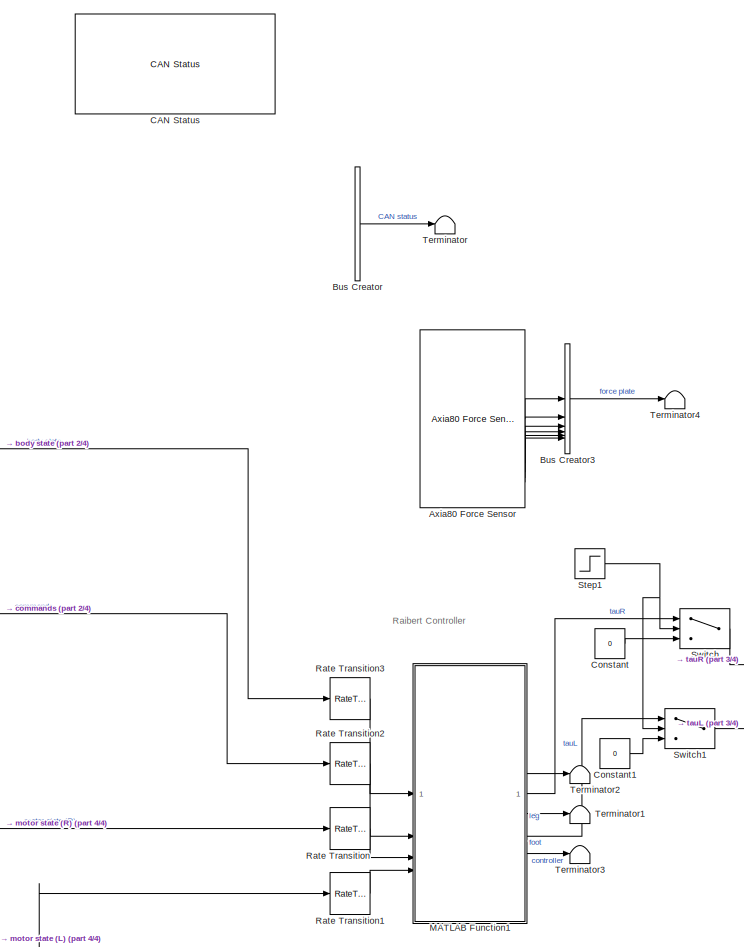
[diagram: root canvas - part 1/4, central region]
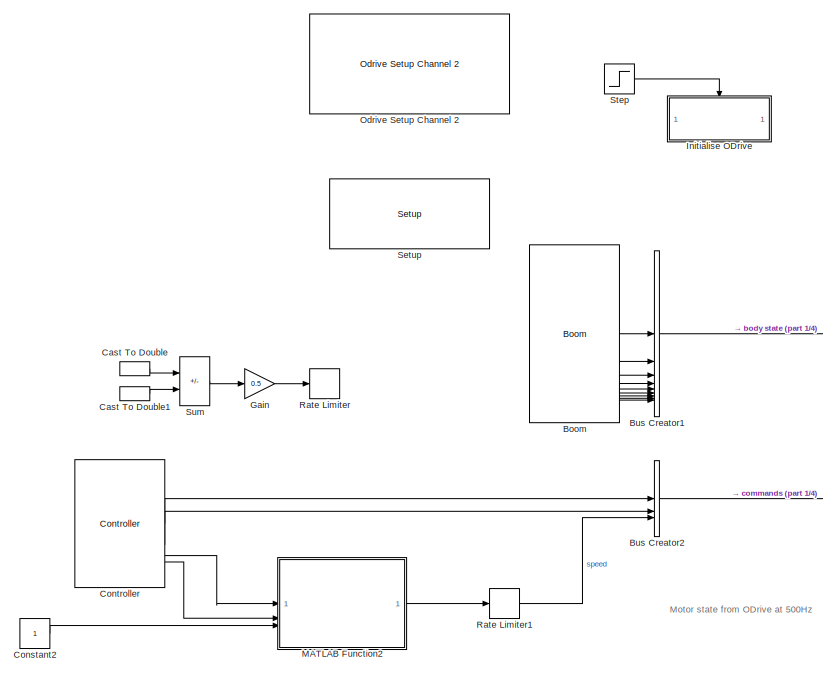
[diagram: root canvas - part 2/4, middle left region]
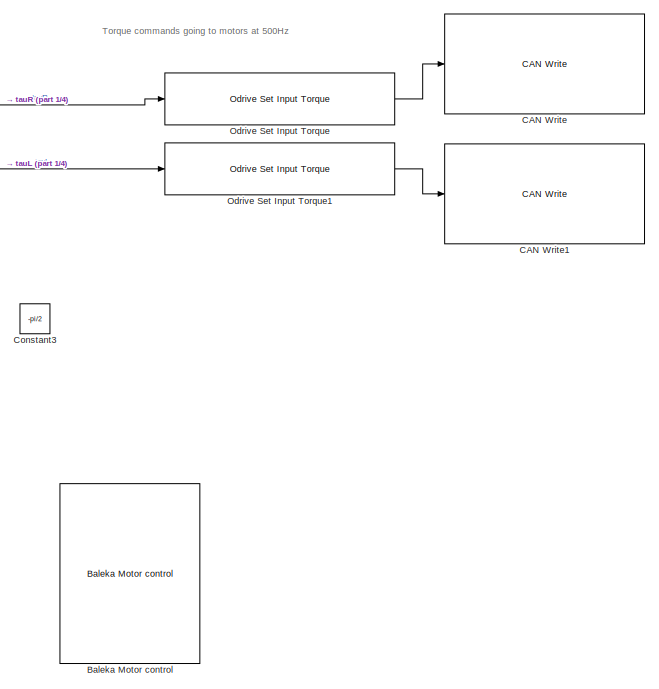
[diagram: root canvas - part 3/4, middle right region]
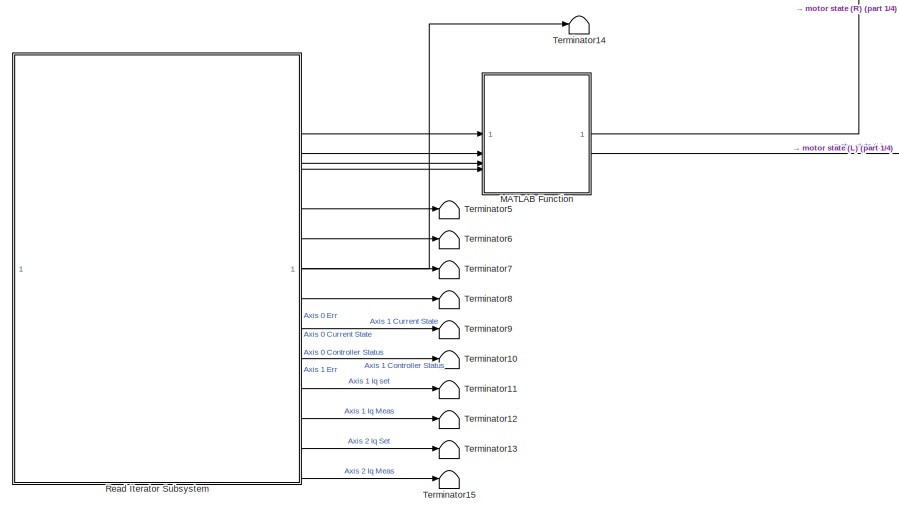
[diagram: root canvas - part 4/4, bottom left region]
MODEL slx_c8e1966b42a7
KIND model
CONFIG AbsTol = auto
CONFIG EnableMultiTasking = on
CONFIG FixedStep = auto
CONFIG InitFcn = run('busObjects.m')
CONFIG MaxStep = auto
CONFIG MinStep = auto
CONFIG RelTol = 1e-3
CONFIG SampleTimeConstraint = Unconstrained
CONFIG SolverName = FixedStepDiscrete
CONFIG StartTime = 0.0
CONFIG StopTime = inf
BLOCK [Reference] Axia80 Force Sensor  REF=aru_toolbox/Axia80 Force Sensor
  Commented = on
  SourceBlock = aru_toolbox/Axia80 Force Sensor
  SourceProductName = ARU Toolbox
  SourceType = Axia80 Force Sensor
BLOCK [Reference] Baleka Motor control  REF=aru_toolbox/Baleka 2.5/Baleka Motor control
  Commented = on
  SourceBlock = aru_toolbox/Baleka 2.5/Baleka Motor control
  SourceProductName = ARU Toolbox
  SourceType = Baleka Motor (AK10-9) Control
BLOCK [Reference] Boom  REF=aru_toolbox/Boom
  SourceBlock = aru_toolbox/Boom
  SourceProductName = ARU Toolbox
  SourceType = Boom Logger
BLOCK [BusCreator] Bus Creator
  Commented = on
  DisplayOption = bar
  InheritFromInputs = off
  Inputs = 7
  NonVirtualBus = on
  OutDataTypeStr = Bus: CAN
BLOCK [BusCreator] Bus Creator1
  DisplayOption = bar
  InheritFromInputs = off
  Inputs = 9
  NonVirtualBus = on
  OutDataTypeStr = Bus: BodyStateO
BLOCK [BusCreator] Bus Creator2
  DisplayOption = bar
  InheritFromInputs = off
  Inputs = 3
  NonVirtualBus = on
  OutDataTypeStr = Bus: Command
BLOCK [BusCreator] Bus Creator3
  Commented = on
  DisplayOption = bar
  InheritFromInputs = off
  Inputs = 6
  NonVirtualBus = on
  OutDataTypeStr = Bus: ForceData
BLOCK [Reference] CAN Status  REF=speedgoatlib_IO691/Legacy/CAN Status
  SourceBlock = speedgoatlib_IO691/Legacy/CAN Status
  SourceProductName = IO691
  SourceType = status_IO691
  UserDataPersistent = on
BLOCK [Reference] CAN Write  REF=speedgoatlib_IO691/Legacy/CAN Write
  SourceBlock = speedgoatlib_IO691/Legacy/CAN Write
  SourceProductName = IO691
  SourceType = write_IO691
BLOCK [Reference] CAN Write1  REF=speedgoatlib_IO691/Legacy/CAN Write
  SourceBlock = speedgoatlib_IO691/Legacy/CAN Write
  SourceProductName = IO691
  SourceType = write_IO691
BLOCK [DataTypeConversion] Cast To Double
  OutDataTypeStr = double
  RndMeth = Floor
  SaturateOnIntegerOverflow = off
BLOCK [DataTypeConversion] Cast To Double1
  OutDataTypeStr = double
  RndMeth = Floor
  SaturateOnIntegerOverflow = off
BLOCK [Constant] Constant
  Value = 0
BLOCK [Constant] Constant1
  Value = 0
BLOCK [Constant] Constant2
BLOCK [Constant] Constant3
  Value = -pi/2
BLOCK [Reference] Controller  REF=aru_toolbox/Controller
  SourceBlock = aru_toolbox/Controller
  SourceProductName = ARU Toolbox
BLOCK [Gain] Gain
  Gain = 0.5
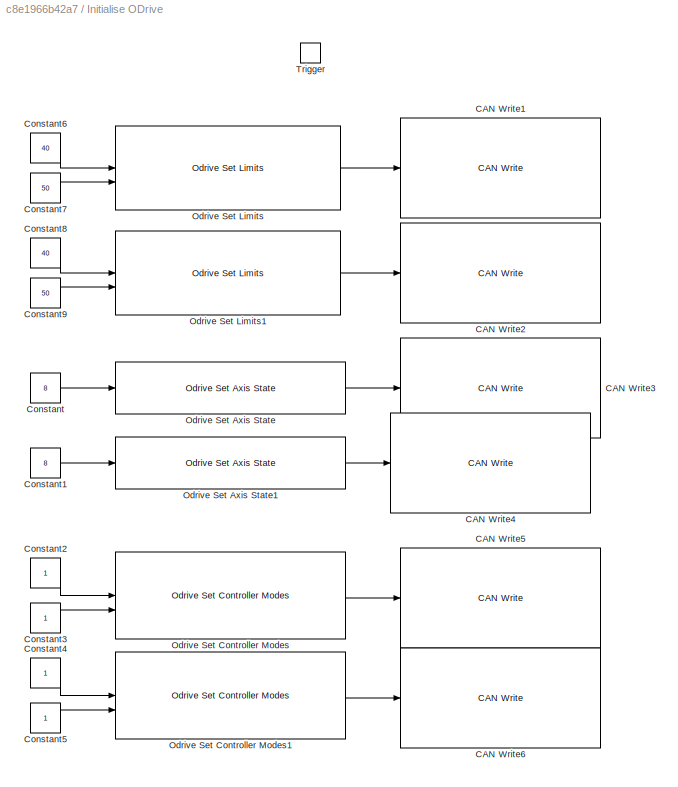
BLOCK [SubSystem] Initialise ODrive
  TreatAsAtomicUnit = on
BLOCK [Reference] Initialise ODrive/CAN Write1  REF=speedgoatlib_IO691/Legacy/CAN Write
  SourceBlock = speedgoatlib_IO691/Legacy/CAN Write
  SourceProductName = IO691
  SourceType = write_IO691
BLOCK [Reference] Initialise ODrive/CAN Write2  REF=speedgoatlib_IO691/Legacy/CAN Write
  SourceBlock = speedgoatlib_IO691/Legacy/CAN Write
  SourceProductName = IO691
  SourceType = write_IO691
BLOCK [Reference] Initialise ODrive/CAN Write3  REF=speedgoatlib_IO691/Legacy/CAN Write
  SourceBlock = speedgoatlib_IO691/Legacy/CAN Write
  SourceProductName = IO691
  SourceType = write_IO691
BLOCK [Reference] Initialise ODrive/CAN Write4  REF=speedgoatlib_IO691/Legacy/CAN Write
  SourceBlock = speedgoatlib_IO691/Legacy/CAN Write
  SourceProductName = IO691
  SourceType = write_IO691
BLOCK [Reference] Initialise ODrive/CAN Write5  REF=speedgoatlib_IO691/Legacy/CAN Write
  SourceBlock = speedgoatlib_IO691/Legacy/CAN Write
  SourceProductName = IO691
  SourceType = write_IO691
BLOCK [Reference] Initialise ODrive/CAN Write6  REF=speedgoatlib_IO691/Legacy/CAN Write
  SourceBlock = speedgoatlib_IO691/Legacy/CAN Write
  SourceProductName = IO691
  SourceType = write_IO691
BLOCK [Constant] Initialise ODrive/Constant
  Value = 8
BLOCK [Constant] Initialise ODrive/Constant1
  Value = 8
BLOCK [Constant] Initialise ODrive/Constant2
  OutDataTypeStr = int32
BLOCK [Constant] Initialise ODrive/Constant3
BLOCK [Constant] Initialise ODrive/Constant4
BLOCK [Constant] Initialise ODrive/Constant5
BLOCK [Constant] Initialise ODrive/Constant6
  Value = 40
BLOCK [Constant] Initialise ODrive/Constant7
  Value = 50
BLOCK [Constant] Initialise ODrive/Constant8
  Value = 40
BLOCK [Constant] Initialise ODrive/Constant9
  Value = 50
BLOCK [Reference] Initialise ODrive/Odrive Set Axis State  REF=aru_toolbox/ODrive/Odrive Set Axis State
  LibrarySourceBlock = canmsglib/CAN Pack
  SourceBlock = aru_toolbox/ODrive/Odrive Set Axis State
  SourceType = CAN Pack
BLOCK [Reference] Initialise ODrive/Odrive Set Axis State1  REF=aru_toolbox/ODrive/Odrive Set Axis State
  LibrarySourceBlock = canmsglib/CAN Pack
  SourceBlock = aru_toolbox/ODrive/Odrive Set Axis State
  SourceType = CAN Pack
BLOCK [Reference] Initialise ODrive/Odrive Set Controller Modes  REF=aru_toolbox/ODrive/Odrive Set Controller Modes
  LibrarySourceBlock = canmsglib/CAN Pack
  SourceBlock = aru_toolbox/ODrive/Odrive Set Controller Modes
  SourceType = CAN Pack
BLOCK [Reference] Initialise ODrive/Odrive Set Controller Modes1  REF=aru_toolbox/ODrive/Odrive Set Controller Modes
  LibrarySourceBlock = canmsglib/CAN Pack
  SourceBlock = aru_toolbox/ODrive/Odrive Set Controller Modes
  SourceType = CAN Pack
BLOCK [Reference] Initialise ODrive/Odrive Set Limits  REF=aru_toolbox/ODrive/Odrive Set Limits
  LibrarySourceBlock = canmsglib/CAN Pack
  SourceBlock = aru_toolbox/ODrive/Odrive Set Limits
  SourceType = CAN Pack
BLOCK [Reference] Initialise ODrive/Odrive Set Limits1  REF=aru_toolbox/ODrive/Odrive Set Limits
  LibrarySourceBlock = canmsglib/CAN Pack
  SourceBlock = aru_toolbox/ODrive/Odrive Set Limits
  SourceType = CAN Pack
BLOCK [TriggerPort] Initialise ODrive/Trigger
  StatesWhenEnabling = held
  VariantControl = Variant
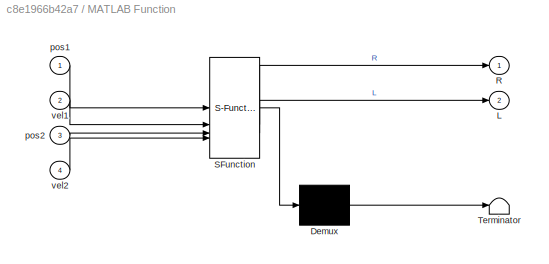
BLOCK [SubSystem] MATLAB Function
  ErrorFcn = Stateflow.Translate.translate
  PermitHierarchicalResolution = ExplicitOnly
  SFBlockType = MATLAB Function
  TreatAsAtomicUnit = on
BLOCK [Demux] MATLAB Function/ Demux 
  Outputs = 1
BLOCK [S-Function] MATLAB Function/ SFunction 
  EnableBusSupport = on
  FunctionName = sf_sfun
  PortCounts = [4 3]
  SFcnIsStateOwnerBlock = off
  SFunctionDeploymentMode = off
  Tag = Stateflow S-Function 2
BLOCK [Terminator] MATLAB Function/ Terminator 
BLOCK [Outport] MATLAB Function/L
  Port = 2
BLOCK [Outport] MATLAB Function/R
BLOCK [Inport] MATLAB Function/pos1
BLOCK [Inport] MATLAB Function/pos2
  Port = 3
BLOCK [Inport] MATLAB Function/vel1
  Port = 2
BLOCK [Inport] MATLAB Function/vel2
  Port = 4
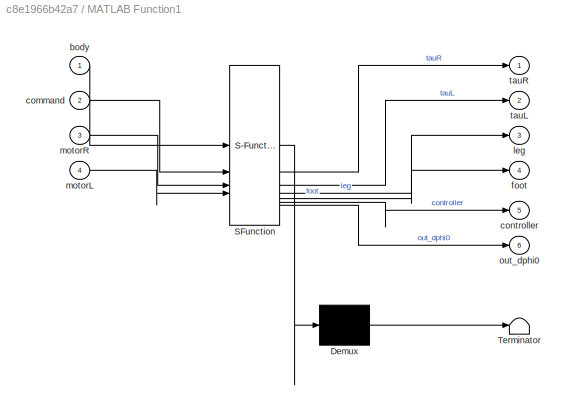
BLOCK [SubSystem] MATLAB Function1
  ErrorFcn = Stateflow.Translate.translate
  PermitHierarchicalResolution = ExplicitOnly
  SFBlockType = MATLAB Function
  TreatAsAtomicUnit = on
BLOCK [Demux] MATLAB Function1/ Demux 
  Outputs = 1
BLOCK [S-Function] MATLAB Function1/ SFunction 
  EnableBusSupport = on
  FunctionName = sf_sfun
  PortCounts = [4 7]
  SFcnIsStateOwnerBlock = off
  SFunctionDeploymentMode = off
  Tag = Stateflow S-Function 1
BLOCK [Terminator] MATLAB Function1/ Terminator 
BLOCK [Inport] MATLAB Function1/body
BLOCK [Inport] MATLAB Function1/command
  Port = 2
BLOCK [Outport] MATLAB Function1/controller
  Port = 5
BLOCK [Outport] MATLAB Function1/foot
  Port = 4
BLOCK [Outport] MATLAB Function1/leg
  Port = 3
BLOCK [Inport] MATLAB Function1/motorL
  Port = 4
BLOCK [Inport] MATLAB Function1/motorR
  Port = 3
BLOCK [Outport] MATLAB Function1/out_dphi0
  Port = 6
BLOCK [Outport] MATLAB Function1/tauL
  Port = 2
BLOCK [Outport] MATLAB Function1/tauR
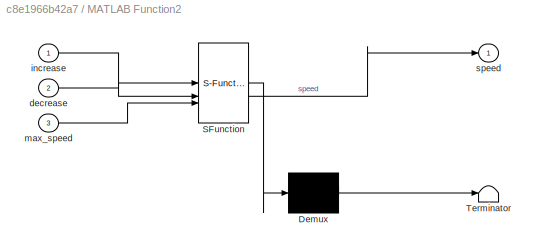
BLOCK [SubSystem] MATLAB Function2
  ErrorFcn = Stateflow.Translate.translate
  PermitHierarchicalResolution = ExplicitOnly
  SFBlockType = MATLAB Function
  TreatAsAtomicUnit = on
BLOCK [Demux] MATLAB Function2/ Demux 
  Outputs = 1
BLOCK [S-Function] MATLAB Function2/ SFunction 
  EnableBusSupport = on
  FunctionName = sf_sfun
  PortCounts = [3 2]
  SFcnIsStateOwnerBlock = off
  SFunctionDeploymentMode = off
  Tag = Stateflow S-Function 11
BLOCK [Terminator] MATLAB Function2/ Terminator 
BLOCK [Inport] MATLAB Function2/decrease
  Port = 2
BLOCK [Inport] MATLAB Function2/increase
BLOCK [Inport] MATLAB Function2/max_speed
  Port = 3
BLOCK [Outport] MATLAB Function2/speed
BLOCK [Reference] Odrive Set Input Torque  REF=aru_toolbox/ODrive/Odrive Set Input Torque
  LibrarySourceBlock = canmsglib/CAN Pack
  SourceBlock = aru_toolbox/ODrive/Odrive Set Input Torque
  SourceType = CAN Pack
BLOCK [Reference] Odrive Set Input Torque1  REF=aru_toolbox/ODrive/Odrive Set Input Torque
  LibrarySourceBlock = canmsglib/CAN Pack
  SourceBlock = aru_toolbox/ODrive/Odrive Set Input Torque
  SourceType = CAN Pack
BLOCK [Reference] Odrive Setup Channel 2  REF=aru_toolbox/ODrive/Odrive Setup Channel 2
  SourceBlock = aru_toolbox/ODrive/Odrive Setup Channel 2
  SourceProductName = IO691
  SourceType = setup_IO691
BLOCK [RateLimiter] Rate Limiter
  FallingSlewLimit = -0.2
  RisingSlewLimit = 0.2
  SampleTimeMode = inherited
BLOCK [RateLimiter] Rate Limiter1
  FallingSlewLimit = -0.15
  RisingSlewLimit = 0.15
  SampleTimeMode = inherited
BLOCK [RateTransition] Rate Transition
BLOCK [RateTransition] Rate Transition1
BLOCK [RateTransition] Rate Transition2
BLOCK [RateTransition] Rate Transition3
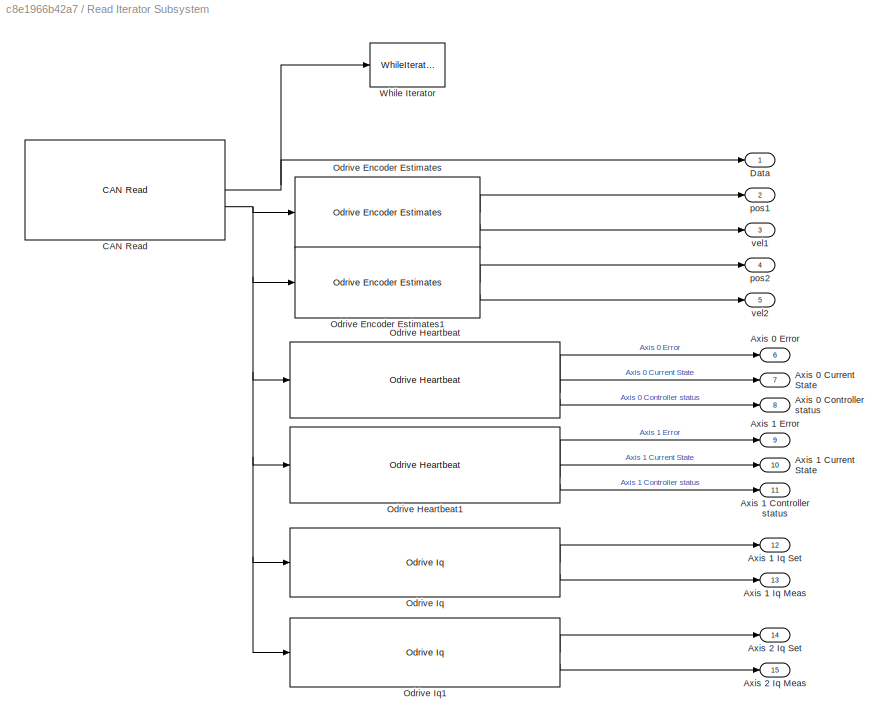
BLOCK [SubSystem] Read Iterator Subsystem
  TreatAsAtomicUnit = on
BLOCK [Outport] Read Iterator Subsystem/Axis 0 Controller status
  Port = 8
BLOCK [Outport] Read Iterator Subsystem/Axis 0 Current State
  Port = 7
BLOCK [Outport] Read Iterator Subsystem/Axis 0 Error
  Port = 6
BLOCK [Outport] Read Iterator Subsystem/Axis 1 Controller status
  Port = 11
BLOCK [Outport] Read Iterator Subsystem/Axis 1 Current State
  Port = 10
BLOCK [Outport] Read Iterator Subsystem/Axis 1 Error
  Port = 9
BLOCK [Outport] Read Iterator Subsystem/Axis 1 Iq Meas
  Port = 13
BLOCK [Outport] Read Iterator Subsystem/Axis 1 Iq Set
  Port = 12
BLOCK [Outport] Read Iterator Subsystem/Axis 2 Iq Meas
  Port = 15
BLOCK [Outport] Read Iterator Subsystem/Axis 2 Iq Set
  Port = 14
BLOCK [Reference] Read Iterator Subsystem/CAN Read  REF=speedgoatlib_IO691/Legacy/CAN Read
  SourceBlock = speedgoatlib_IO691/Legacy/CAN Read
  SourceProductName = IO691
  SourceType = read_IO691
BLOCK [Outport] Read Iterator Subsystem/Data
BLOCK [Reference] Read Iterator Subsystem/Odrive Encoder Estimates  REF=aru_toolbox/ODrive/Odrive Encoder Estimates
  LibrarySourceBlock = canmsglib/CAN Unpack
  SourceBlock = aru_toolbox/ODrive/Odrive Encoder Estimates
  SourceType = CAN Unpack
BLOCK [Reference] Read Iterator Subsystem/Odrive Encoder Estimates1  REF=aru_toolbox/ODrive/Odrive Encoder Estimates
  LibrarySourceBlock = canmsglib/CAN Unpack
  SourceBlock = aru_toolbox/ODrive/Odrive Encoder Estimates
  SourceType = CAN Unpack
BLOCK [Reference] Read Iterator Subsystem/Odrive Heartbeat  REF=aru_toolbox/ODrive/Odrive Heartbeat
  LibrarySourceBlock = canmsglib/CAN Unpack
  SourceBlock = aru_toolbox/ODrive/Odrive Heartbeat
  SourceType = CAN Unpack
BLOCK [Reference] Read Iterator Subsystem/Odrive Heartbeat1  REF=aru_toolbox/ODrive/Odrive Heartbeat
  LibrarySourceBlock = canmsglib/CAN Unpack
  SourceBlock = aru_toolbox/ODrive/Odrive Heartbeat
  SourceType = CAN Unpack
BLOCK [Reference] Read Iterator Subsystem/Odrive Iq  REF=aru_toolbox/ODrive/Odrive Iq
  SourceBlock = aru_toolbox/ODrive/Odrive Iq
  SourceType = CAN Unpack
BLOCK [Reference] Read Iterator Subsystem/Odrive Iq1  REF=aru_toolbox/ODrive/Odrive Iq
  SourceBlock = aru_toolbox/ODrive/Odrive Iq
  SourceType = CAN Unpack
BLOCK [WhileIterator] Read Iterator Subsystem/While Iterator
  WhileBlockType = do-while
BLOCK [Outport] Read Iterator Subsystem/pos1
  Port = 2
BLOCK [Outport] Read Iterator Subsystem/pos2
  Port = 4
BLOCK [Outport] Read Iterator Subsystem/vel1
  Port = 3
BLOCK [Outport] Read Iterator Subsystem/vel2
  Port = 5
BLOCK [Reference] Setup   REF=speedgoatlib_IO291/Setup 
  SourceBlock = speedgoatlib_IO291/Setup
  SourceProductName = IO291
  SourceType = setup_IO291
BLOCK [Step] Step
  SampleTime = 0
BLOCK [Step] Step1
  SampleTime = 0
  Time = 2
BLOCK [Sum] Sum
  IconShape = rectangular
  Inputs = +-
BLOCK [Switch] Switch
  Criteria = u2 > Threshold
  InputSameDT = off
  SaturateOnIntegerOverflow = off
BLOCK [Switch] Switch1
  Criteria = u2 > Threshold
  InputSameDT = off
  SaturateOnIntegerOverflow = off
BLOCK [Terminator] Terminator
  Commented = on
BLOCK [Terminator] Terminator1
BLOCK [Terminator] Terminator10
BLOCK [Terminator] Terminator11
BLOCK [Terminator] Terminator12
BLOCK [Terminator] Terminator13
BLOCK [Terminator] Terminator14
BLOCK [Terminator] Terminator15
BLOCK [Terminator] Terminator2
BLOCK [Terminator] Terminator3
BLOCK [Terminator] Terminator4
BLOCK [Terminator] Terminator5
BLOCK [Terminator] Terminator6
BLOCK [Terminator] Terminator7
BLOCK [Terminator] Terminator8
BLOCK [Terminator] Terminator9
ANNOTATION (root): Motor state from ODrive at 500Hz
ANNOTATION (root): Raibert Controller
ANNOTATION (root): Torque commands going to motors at 500Hz
LINE Axia80 Force Sensor:1 -> Bus Creator3:1
LINE Axia80 Force Sensor:2 -> Bus Creator3:2
LINE Axia80 Force Sensor:3 -> Bus Creator3:3
LINE Axia80 Force Sensor:4 -> Bus Creator3:4
LINE Axia80 Force Sensor:5 -> Bus Creator3:5
LINE Axia80 Force Sensor:6 -> Bus Creator3:6
LINE Boom:1 -> Bus Creator1:1
LINE Boom:2 -> Bus Creator1:2
LINE Boom:3 -> Bus Creator1:3
LINE Boom:4 -> Bus Creator1:4
LINE Boom:5 -> Bus Creator1:5
LINE Boom:6 -> Bus Creator1:6
LINE Boom:7 -> Bus Creator1:7
LINE Boom:8 -> Bus Creator1:8
LINE Boom:9 -> Bus Creator1:9
LINE Bus Creator1:1 -> Rate Transition3:1
LINE Bus Creator2:1 -> Rate Transition2:1
LINE Bus Creator3:1 -> Terminator4:1
LINE Bus Creator:1 -> Terminator:1
LINE Cast To Double1:1 -> Sum:2
LINE Cast To Double:1 -> Sum:1
LINE Constant1:1 -> Switch1:3
LINE Constant2:1 -> MATLAB Function2:3
LINE Constant:1 -> Switch:3
LINE Controller:1 -> Bus Creator2:1
LINE Controller:2 -> Bus Creator2:2
LINE Controller:3 -> MATLAB Function2:1
LINE Controller:4 -> MATLAB Function2:2
LINE Gain:1 -> Rate Limiter:1
LINE Initialise ODrive/Constant1:1 -> Initialise ODrive/Odrive Set Axis State1:1
LINE Initialise ODrive/Constant2:1 -> Initialise ODrive/Odrive Set Controller Modes:1
LINE Initialise ODrive/Constant3:1 -> Initialise ODrive/Odrive Set Controller Modes:2
LINE Initialise ODrive/Constant4:1 -> Initialise ODrive/Odrive Set Controller Modes1:1
LINE Initialise ODrive/Constant5:1 -> Initialise ODrive/Odrive Set Controller Modes1:2
LINE Initialise ODrive/Constant6:1 -> Initialise ODrive/Odrive Set Limits:1
LINE Initialise ODrive/Constant7:1 -> Initialise ODrive/Odrive Set Limits:2
LINE Initialise ODrive/Constant8:1 -> Initialise ODrive/Odrive Set Limits1:1
LINE Initialise ODrive/Constant9:1 -> Initialise ODrive/Odrive Set Limits1:2
LINE Initialise ODrive/Constant:1 -> Initialise ODrive/Odrive Set Axis State:1
LINE Initialise ODrive/Odrive Set Axis State1:1 -> Initialise ODrive/CAN Write4:1
LINE Initialise ODrive/Odrive Set Axis State:1 -> Initialise ODrive/CAN Write3:1
LINE Initialise ODrive/Odrive Set Controller Modes1:1 -> Initialise ODrive/CAN Write6:1
LINE Initialise ODrive/Odrive Set Controller Modes:1 -> Initialise ODrive/CAN Write5:1
LINE Initialise ODrive/Odrive Set Limits1:1 -> Initialise ODrive/CAN Write2:1
LINE Initialise ODrive/Odrive Set Limits:1 -> Initialise ODrive/CAN Write1:1
LINE MATLAB Function1:1 -> Switch:1
LINE MATLAB Function1:2 -> Switch1:1
LINE MATLAB Function1:3 -> Terminator2:1
LINE MATLAB Function1:4 -> Terminator1:1
LINE MATLAB Function1:5 -> Terminator3:1
LINE MATLAB Function2:1 -> Rate Limiter1:1
LINE MATLAB Function:1 -> Rate Transition:1
LINE MATLAB Function:2 -> Rate Transition1:1
LINE Odrive Set Input Torque1:1 -> CAN Write1:1
LINE Odrive Set Input Torque:1 -> CAN Write:1
LINE Rate Limiter1:1 -> Bus Creator2:3
LINE Rate Transition1:1 -> MATLAB Function1:4
LINE Rate Transition2:1 -> MATLAB Function1:2
LINE Rate Transition3:1 -> MATLAB Function1:1
LINE Rate Transition:1 -> MATLAB Function1:3
NET Read Iterator Subsystem/CAN Read:1 -> Read Iterator Subsystem/Data:1, Read Iterator Subsystem/While Iterator:1
NET Read Iterator Subsystem/CAN Read:2 -> Read Iterator Subsystem/Odrive Encoder Estimates1:1, Read Iterator Subsystem/Odrive Encoder Estimates:1, Read Iterator Subsystem/Odrive Heartbeat1:1, Read Iterator Subsystem/Odrive Heartbeat:1, Read Iterator Subsystem/Odrive Iq1:1, Read Iterator Subsystem/Odrive Iq:1
LINE Read Iterator Subsystem/Odrive Encoder Estimates1:1 -> Read Iterator Subsystem/pos2:1
LINE Read Iterator Subsystem/Odrive Encoder Estimates1:2 -> Read Iterator Subsystem/vel2:1
LINE Read Iterator Subsystem/Odrive Encoder Estimates:1 -> Read Iterator Subsystem/pos1:1
LINE Read Iterator Subsystem/Odrive Encoder Estimates:2 -> Read Iterator Subsystem/vel1:1
LINE Read Iterator Subsystem/Odrive Heartbeat1:1 -> Read Iterator Subsystem/Axis 1 Error:1
LINE Read Iterator Subsystem/Odrive Heartbeat1:2 -> Read Iterator Subsystem/Axis 1 Current State:1
LINE Read Iterator Subsystem/Odrive Heartbeat1:3 -> Read Iterator Subsystem/Axis 1 Controller status:1
LINE Read Iterator Subsystem/Odrive Heartbeat:1 -> Read Iterator Subsystem/Axis 0 Error:1
LINE Read Iterator Subsystem/Odrive Heartbeat:2 -> Read Iterator Subsystem/Axis 0 Current State:1
LINE Read Iterator Subsystem/Odrive Heartbeat:3 -> Read Iterator Subsystem/Axis 0 Controller status:1
LINE Read Iterator Subsystem/Odrive Iq1:1 -> Read Iterator Subsystem/Axis 2 Iq Set:1
LINE Read Iterator Subsystem/Odrive Iq1:2 -> Read Iterator Subsystem/Axis 2 Iq Meas:1
LINE Read Iterator Subsystem/Odrive Iq:1 -> Read Iterator Subsystem/Axis 1 Iq Set:1
LINE Read Iterator Subsystem/Odrive Iq:2 -> Read Iterator Subsystem/Axis 1 Iq Meas:1
LINE Read Iterator Subsystem:1 -> Terminator14:1
LINE Read Iterator Subsystem:10 -> Terminator9:1
LINE Read Iterator Subsystem:11 -> Terminator10:1
LINE Read Iterator Subsystem:12 -> Terminator11:1
LINE Read Iterator Subsystem:13 -> Terminator12:1
LINE Read Iterator Subsystem:14 -> Terminator13:1
LINE Read Iterator Subsystem:15 -> Terminator15:1
LINE Read Iterator Subsystem:2 -> MATLAB Function:1
LINE Read Iterator Subsystem:3 -> MATLAB Function:2
LINE Read Iterator Subsystem:4 -> MATLAB Function:3
LINE Read Iterator Subsystem:5 -> MATLAB Function:4
LINE Read Iterator Subsystem:6 -> Terminator5:1
LINE Read Iterator Subsystem:7 -> Terminator6:1
LINE Read Iterator Subsystem:8 -> Terminator7:1
LINE Read Iterator Subsystem:9 -> Terminator8:1
NET Step1:1 -> Switch1:2, Switch:2
LINE Step:1 -> Initialise ODrive:trigger
LINE Sum:1 -> Gain:1
LINE Switch1:1 -> Odrive Set Input Torque1:1
LINE Switch:1 -> Odrive Set Input Torque:1
note: NET lines group one-source signal fan-out (src -> all destinations, sorted); 1:1 wires keep LINE
CHART MATLAB Function1 states=1 transitions=1
  STATE_LABEL 'eML_blk_kernel()'
  STATE_LABEL 'SCRIPT:\nfunction [tauR, tauL, leg, foot, controller,out_dphi0]   = raibert(body, command, motorR, motorL) %#codegen\n\nleg.r = 0; leg.phi = 0; leg.dr = 0; leg.dphi = 0; leg.r0 = 0.33; leg.phi0 = -pi/2;\nfoot.x = 0; foot.y = 0; foot.contact = false; foot.height = 0;\n\n[leg.r, leg.phi] = fwd_polar(motorL.q, motorR.q);\n[foot.x, foot.y] = fwd_cartesian(motorL.q, motorR.q);\nA = J_polar(motorL.q, motorR.q) ...<+3166ch>'
CHART MATLAB Function states=1 transitions=1
  STATE_LABEL 'eML_blk_kernel()'
  STATE_LABEL 'SCRIPT:\nfunction [R,L] = motor2hip(pos1, vel1, pos2, vel2) %#codegen\nN = 6;\nfemurTaper = 0.080111; %rad\n\nactualR = -0.2971;\nactualL = -0.0555;\n\noffsetR = femurTaper - actualR;\noffsetL = pi - femurTaper - actualL;\n\n% offsetR = 0;\n% offsetL = 0;\n% ODrive uses units turns and turns/s so need to explicity convert to\n% radians\nR.q = pos1*2*pi/N + offsetR;\nR.w = vel1*2*pi/N;\nL.q = pos2*2*pi/N + offsetL;...<+24ch>'
CHART MATLAB Function2 states=1 transitions=1
  STATE_LABEL 'eML_blk_kernel()'
  STATE_LABEL 'SCRIPT:\nfunction speed = speed_counter(increase, decrease,max_speed)\n\npersistent count;\npersistent timer;\ngradient = 0.1;\n\nif isempty(count)\n    count = 0;\nend\n\nif isempty(timer)\n    timer = 0;\nend\n\nif (timer == 0 && increase>0)\n    count = count + gradient;\n    timer = 2000;\nelse\n    if (timer == 0 && decrease > 0)\n        count = count - gradient;\n        timer = 2000;\n    else\n        if(timer>...<+105ch>'
CHART  states=0 transitions=0
CHART  states=0 transitions=0
CHART  states=0 transitions=0
